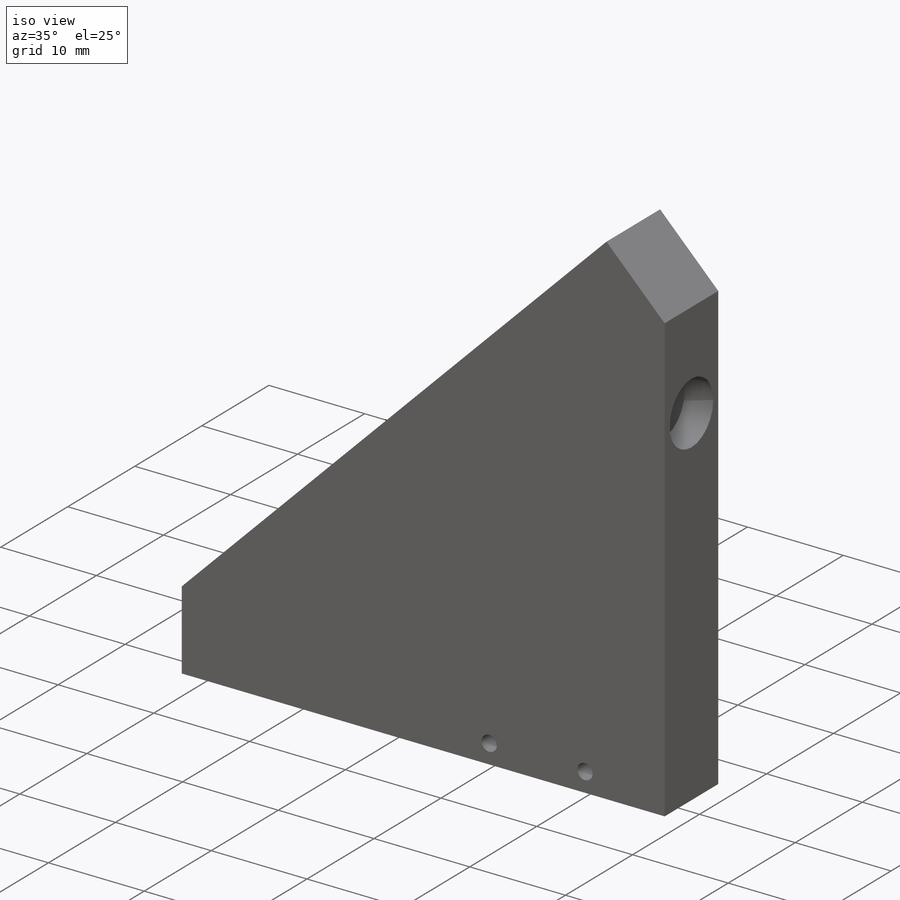
[diagram: iso view]
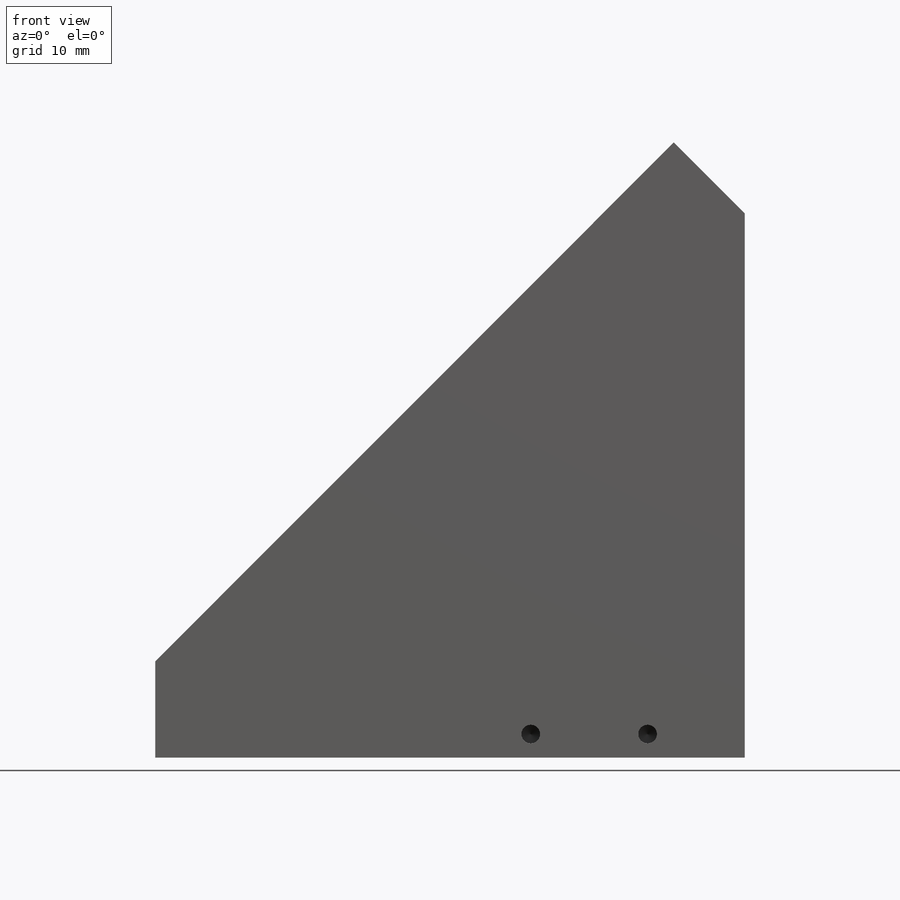
[diagram: front view]
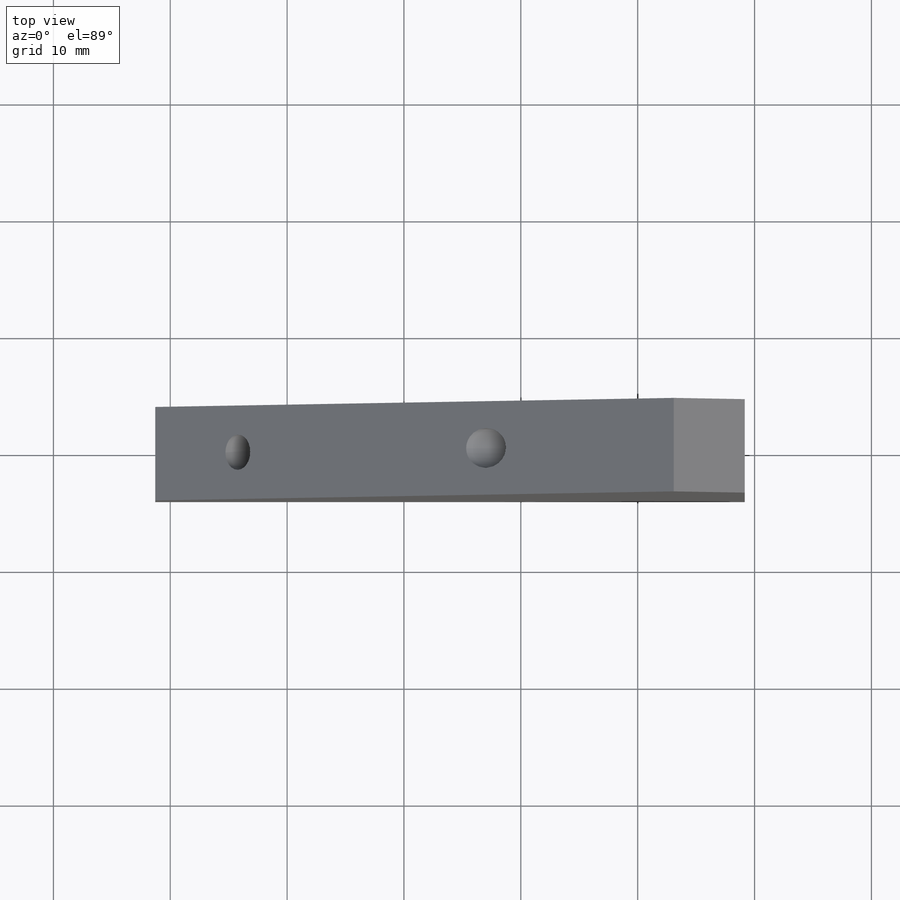
[diagram: top view]
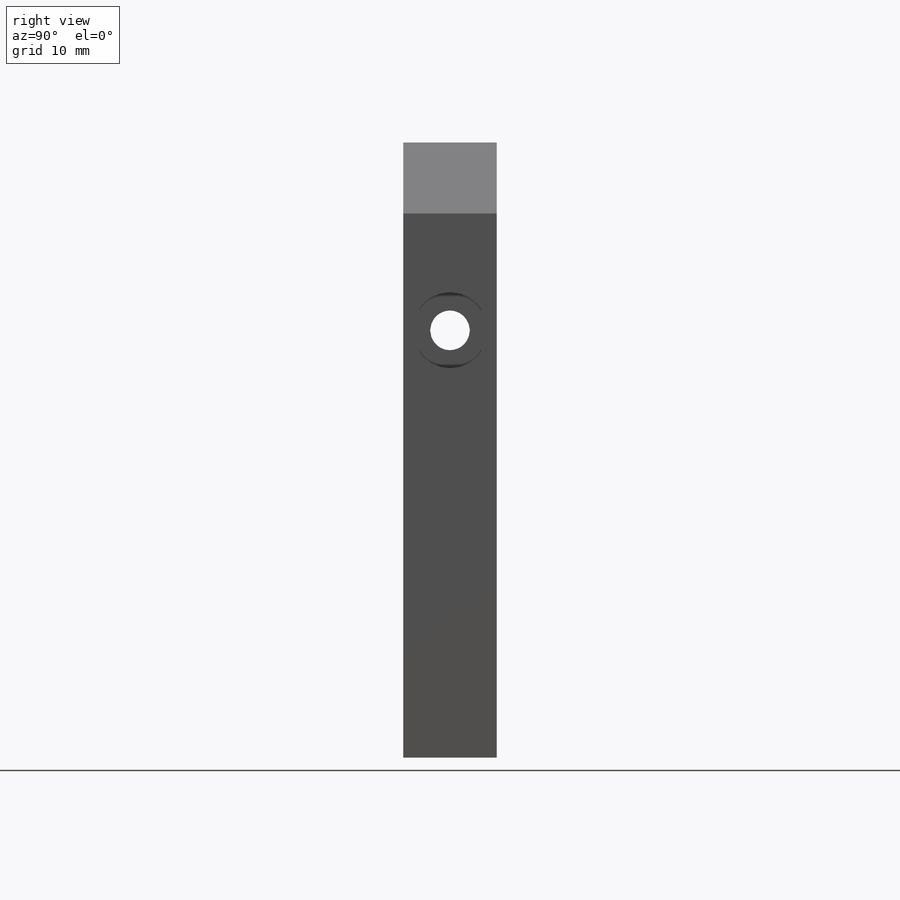
[diagram: right view]
SOLIDWORKS PART (.sldprt)
format: sldprt  version: not decoded by parser v0  size: 373,248 bytes
history: native  units: mm
features: sketch x19, cut_extrude x4, hole x4, thread x3, extrude x2, material x1 (+12 scaffold rows collapsed)
feature tree (45):
  scaffold x12  (default folders/planes/origin — collapsed)
  material  "A286 Iron Base Superalloy"
  sketch  "Sketch2"  dims[c1.D1=10.0mm c1.D2=10.0mm c1.D3=15.31mm c1.D4=9.83mm c1.D5=59.68mm c1.D6=54.2mm c1.D7=~62.748656mm c2.D6=62.78mm c2.D7=~54.244316mm]
  extrude  "Boss-Extrude1"  Depth=8mm
  sketch  "Sketch3"
  extrude  "Boss-Extrude2"  Depth=5.46mm
  sketch  "Sketch5"  dims[D1=2.16mm]
  cut_extrude  "Cut-Extrude2"  [1 undecoded]
  sketch  "Sketch6"  dims[D1=3.0mm D2=3.0mm D3=5.0mm D4=5.0mm D5=4.0mm D6=4.0mm]
  sketch  "Sketch9"
  cut_extrude  "Cut-Extrude3"  [1 undecoded]
  sketch  "Sketch10"  dims[D1=19.0mm]
  hole  "CBORE for M3 SHCS1"  Diameter=3.4mm Depth=52.633248mm
  sketch  "Sketch12"
  sketch  "Sketch13"  dims[hole-wizard template sketch: 42 standard entries collapsed; hole parameters kept: c12.Thru Hole Depth=~52.633248mm c12.C'Bore Dia.=6.5mm c12.C'Bore Depth=3.0mm]
  sketch  "Sketch14"  dims[D2=3.0mm D1=10.0mm]
  hole  "CBORE for M3 SHCS2"  Diameter=3.4mm Depth=57.52mm
  sketch  "Sketch16"
  sketch  "Sketch15"  dims[hole-wizard template sketch: 42 standard entries collapsed; hole parameters kept: c12.Thru Hole Depth=57.52mm c12.C'Bore Dia.=6.5mm c12.C'Bore Depth=3.0mm]
  sketch  "Sketch17"  dims[D1=3.0mm D2=3.0mm D3=8.32mm D4=10.0mm D5=2.0mm D6=2.0mm]
  hole  "M2x0.4 Tapped Hole1"  Diameter=1.6mm Depth=7mm
  sketch  "Sketch19"
  sketch  "Sketch18"  dims[hole-wizard template sketch: 47 standard entries collapsed; hole parameters kept: c15.Tap Drill Depth=7.0mm c15.D3=~14.816244mm c15.Drill Angle=118.0deg]
  thread  "Hole Thread1"  Diameter=4mm  [1 undecoded]
  thread  "Hole Thread2"  Diameter=4mm  [1 undecoded]
  sketch  "Sketch20"
  cut_extrude  "Cut-Extrude4"  [1 undecoded]
  sketch  "Sketch21"  dims[D1=3.0mm D2=4.0mm]
  sketch  "Sketch22"  dims[D1=3.0mm D2=10.0mm D3=4.0mm]
  cut_extrude  "Cut-Extrude6"  Depth=5.5mm
  hole  "M3x0.5 Tapped Hole2"  Diameter=2.5mm Depth=8.5mm
  sketch  "Sketch24"
  sketch  "Sketch23"  dims[hole-wizard template sketch: 50 standard entries collapsed; hole parameters above]
  thread  "Hole Thread3"  Diameter=6mm  [1 undecoded]
decode coverage: 22 of 32 modeling features carry decoded parameters
note: ~ marks probable driven/reference dimensions
note: 6 parameter values undecoded
summary: no parameter record found for 3 features; Diameter pulled from absorbed wizard sketch
note: suppression state not decoded; provenance and decode notes live in map.json
